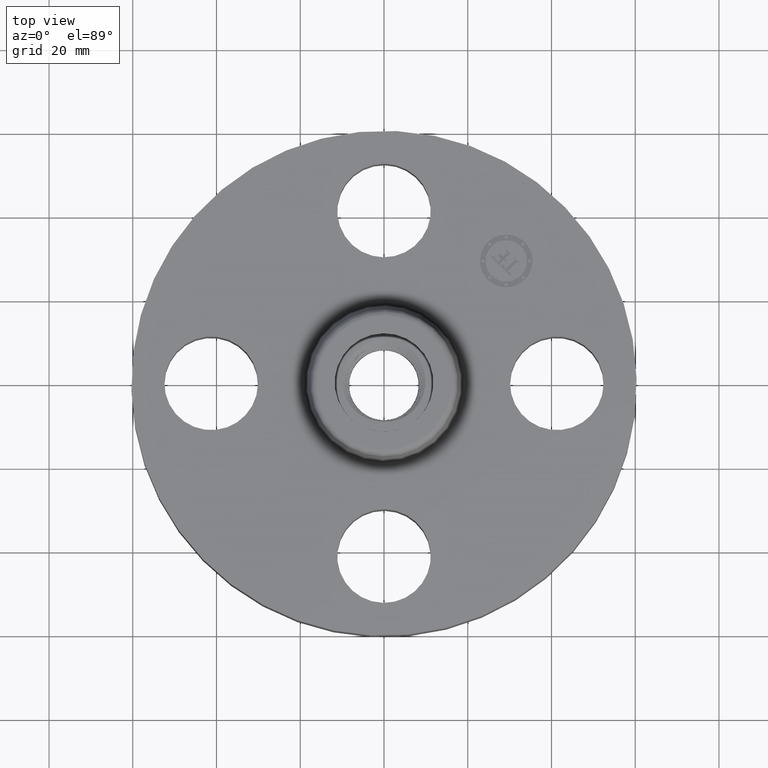
[diagram: clean part render]
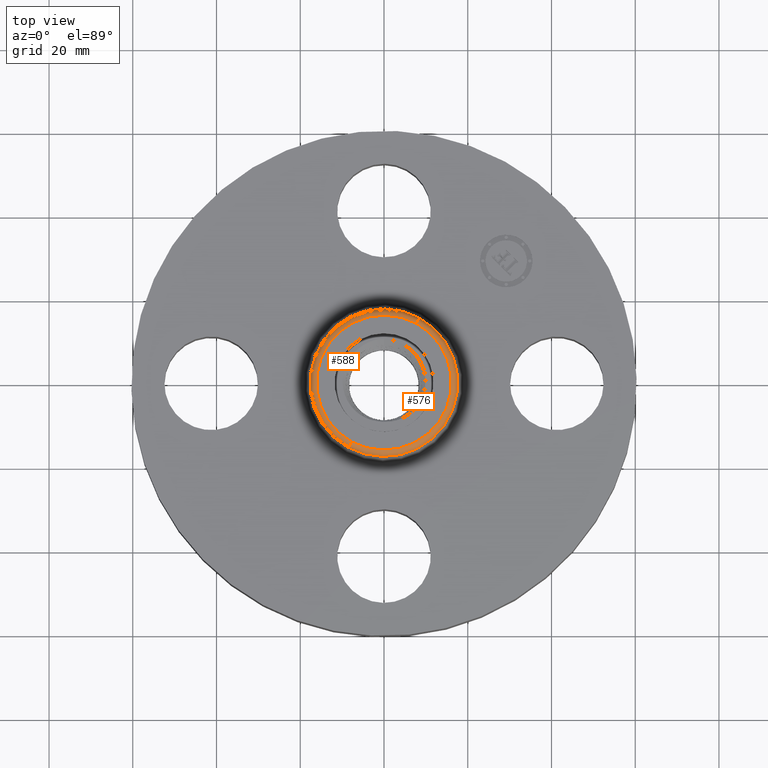
[diagram: same view with one multi-face feature highlighted, each face labeled with its STEP entity id]
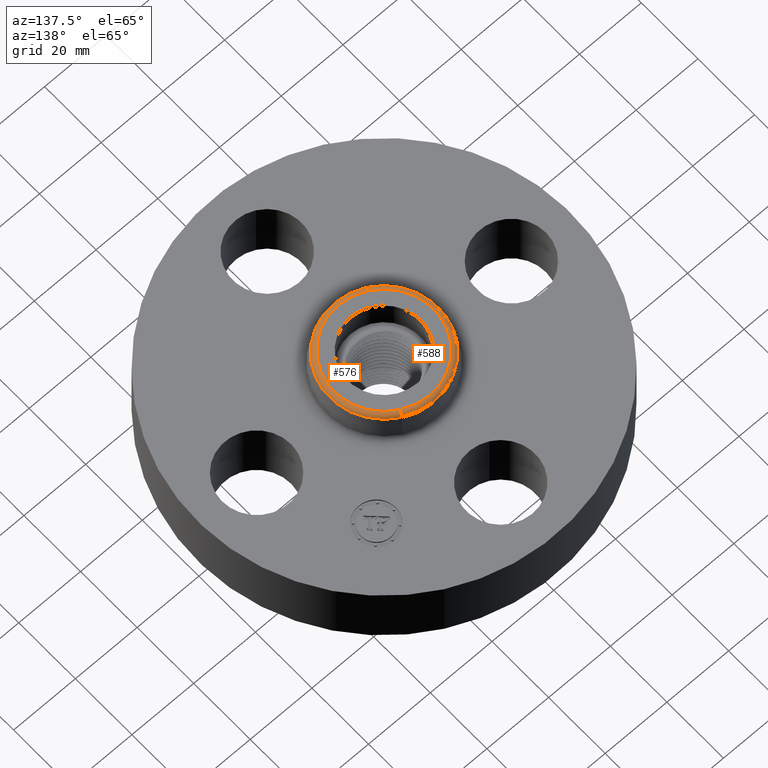
[diagram: same view with one multi-face feature highlighted, each face labeled with its STEP entity id]
A machine part, top view. The highlighted faces form ONE feature: a constant-radius fillet chain: 2 tangent blend faces with common blend radius 1.524 mm. The faces share edges in the B-rep.
A second angle (auxiliary view) of the same feature is appended — it is thin or edge-on in the first view.
Their STEP definitions:
[1] entity #576 (Torus):
#517=AXIS2_PLACEMENT_3D('Circle Axis2P3D',#515,#516,$) ;
#549=AXIS2_PLACEMENT_3D('Torus Axis2P3D',#546,#547,#548) ;
#553=AXIS2_PLACEMENT_3D('Circle Axis2P3D',#551,#552,$) ;
#560=AXIS2_PLACEMENT_3D('Circle Axis2P3D',#558,#559,$) ;
#567=AXIS2_PLACEMENT_3D('Circle Axis2P3D',#565,#566,$) ;
#512=CARTESIAN_POINT('Vertex',(0.332482332294,0.608604826951,1.20041889066)) ;
#515=CARTESIAN_POINT('Axis2P3D Location',(0.,0.,1.20041889066)) ;
#519=CARTESIAN_POINT('Vertex',(-0.332482332294,-0.608604826951,1.20041889066)) ;
#546=CARTESIAN_POINT('Axis2P3D Location',(0.,0.,1.19)) ;
#551=CARTESIAN_POINT('Axis2P3D Location',(0.304153813049,0.556749820299,1.19)) ;
#555=CARTESIAN_POINT('Vertex',(0.304153813049,0.556749820299,1.25000000001)) ;
#558=CARTESIAN_POINT('Axis2P3D Location',(0.,0.,1.25000000001)) ;
#562=CARTESIAN_POINT('Vertex',(-0.304153813049,-0.556749820299,1.25000000001)) ;
#565=CARTESIAN_POINT('Axis2P3D Location',(-0.304153813049,-0.556749820299,1.19)) ;
#516=DIRECTION('Axis2P3D Direction',(0.,0.,-0.0393700787402)) ;
#547=DIRECTION('Axis2P3D Direction',(0.,0.,-0.0393700787402)) ;
#548=DIRECTION('Axis2P3D XDirection',(-0.0188750212049,-0.0345504945626,0.)) ;
#552=DIRECTION('Axis2P3D Direction',(-0.0345504945626,0.0188750212049,0.)) ;
#559=DIRECTION('Axis2P3D Direction',(0.,0.,-0.0393700787402)) ;
#566=DIRECTION('Axis2P3D Direction',(0.0345504945626,-0.0188750212049,0.)) ;
#571=ORIENTED_EDGE('',*,*,#521,.F.) ;
#572=ORIENTED_EDGE('',*,*,#557,.T.) ;
#573=ORIENTED_EDGE('',*,*,#564,.T.) ;
#574=ORIENTED_EDGE('',*,*,#569,.F.) ;
#576=ADVANCED_FACE('PartBody',(#575),#550,.T.) ;
#518=CIRCLE('generated circle',#517,0.693501504451) ;
#554=CIRCLE('generated circle',#553,0.0600000000002) ;
#561=CIRCLE('generated circle',#560,0.63441303927) ;
#568=CIRCLE('generated circle',#567,0.0600000000002) ;
#550=TOROIDAL_SURFACE('homeo Torus',#549,0.63441303927,0.0600000000002) ;
#521=EDGE_CURVE('',#513,#520,#518,.T.) ;
#557=EDGE_CURVE('',#513,#556,#554,.F.) ;
#564=EDGE_CURVE('',#556,#563,#561,.T.) ;
#569=EDGE_CURVE('',#520,#563,#568,.F.) ;
#570=EDGE_LOOP('',(#571,#572,#573,#574)) ;
#575=FACE_OUTER_BOUND('',#570,.T.) ;
#513=VERTEX_POINT('',#512) ;
#520=VERTEX_POINT('',#519) ;
#556=VERTEX_POINT('',#555) ;
#563=VERTEX_POINT('',#562) ;
[2] entity #588 (Torus):
#536=AXIS2_PLACEMENT_3D('Circle Axis2P3D',#534,#535,$) ;
#549=AXIS2_PLACEMENT_3D('Torus Axis2P3D',#546,#547,#548) ;
#553=AXIS2_PLACEMENT_3D('Circle Axis2P3D',#551,#552,$) ;
#567=AXIS2_PLACEMENT_3D('Circle Axis2P3D',#565,#566,$) ;
#579=AXIS2_PLACEMENT_3D('Circle Axis2P3D',#577,#578,$) ;
#512=CARTESIAN_POINT('Vertex',(0.332482332294,0.608604826951,1.20041889066)) ;
#519=CARTESIAN_POINT('Vertex',(-0.332482332294,-0.608604826951,1.20041889066)) ;
#534=CARTESIAN_POINT('Axis2P3D Location',(0.,0.,1.20041889066)) ;
#546=CARTESIAN_POINT('Axis2P3D Location',(0.,0.,1.19)) ;
#551=CARTESIAN_POINT('Axis2P3D Location',(0.304153813049,0.556749820299,1.19)) ;
#555=CARTESIAN_POINT('Vertex',(0.304153813049,0.556749820299,1.25000000001)) ;
#562=CARTESIAN_POINT('Vertex',(-0.304153813049,-0.556749820299,1.25000000001)) ;
#565=CARTESIAN_POINT('Axis2P3D Location',(-0.304153813049,-0.556749820299,1.19)) ;
#577=CARTESIAN_POINT('Axis2P3D Location',(0.,0.,1.25000000001)) ;
#535=DIRECTION('Axis2P3D Direction',(0.,0.,-0.0393700787402)) ;
#547=DIRECTION('Axis2P3D Direction',(0.,0.,-0.0393700787402)) ;
#548=DIRECTION('Axis2P3D XDirection',(-0.0188750212049,-0.0345504945626,0.)) ;
#552=DIRECTION('Axis2P3D Direction',(-0.0345504945626,0.0188750212049,0.)) ;
#566=DIRECTION('Axis2P3D Direction',(0.0345504945626,-0.0188750212049,0.)) ;
#578=DIRECTION('Axis2P3D Direction',(0.,0.,-0.0393700787402)) ;
#583=ORIENTED_EDGE('',*,*,#538,.F.) ;
#584=ORIENTED_EDGE('',*,*,#569,.T.) ;
#585=ORIENTED_EDGE('',*,*,#581,.T.) ;
#586=ORIENTED_EDGE('',*,*,#557,.F.) ;
#588=ADVANCED_FACE('PartBody',(#587),#550,.T.) ;
#537=CIRCLE('generated circle',#536,0.693501504451) ;
#554=CIRCLE('generated circle',#553,0.0600000000002) ;
#568=CIRCLE('generated circle',#567,0.0600000000002) ;
#580=CIRCLE('generated circle',#579,0.63441303927) ;
#550=TOROIDAL_SURFACE('homeo Torus',#549,0.63441303927,0.0600000000002) ;
#538=EDGE_CURVE('',#520,#513,#537,.T.) ;
#557=EDGE_CURVE('',#513,#556,#554,.F.) ;
#569=EDGE_CURVE('',#520,#563,#568,.F.) ;
#581=EDGE_CURVE('',#563,#556,#580,.T.) ;
#582=EDGE_LOOP('',(#583,#584,#585,#586)) ;
#587=FACE_OUTER_BOUND('',#582,.T.) ;
#513=VERTEX_POINT('',#512) ;
#520=VERTEX_POINT('',#519) ;
#556=VERTEX_POINT('',#555) ;
#563=VERTEX_POINT('',#562) ;